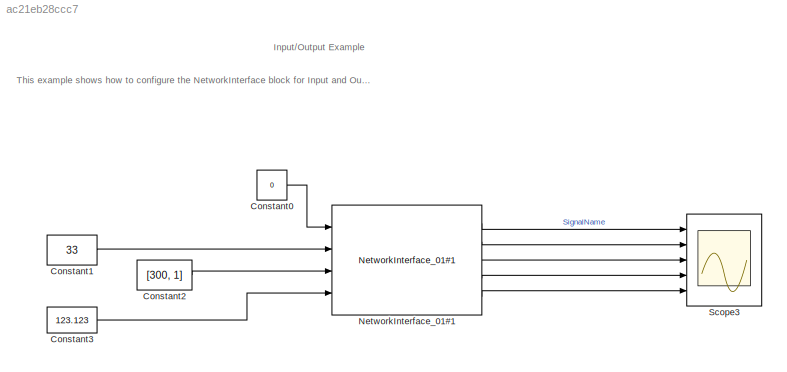
MODEL slx_ac21eb28ccc7
KIND model
CONFIG AbsTol = auto
CONFIG EnableMultiTasking = off
CONFIG FixedStep = 0.05
CONFIG MaxStep = auto
CONFIG MinStep = auto
CONFIG RelTol = 1e-3
CONFIG SampleTimeConstraint = Unconstrained
CONFIG Solver = FixedStepDiscrete
CONFIG SolverName = FixedStepDiscrete
CONFIG StartTime = 0.0
CONFIG StopTime = inf
BLOCK [Constant] Constant0
  OutDataTypeStr = double
  SampleTime = -1
  Value = 0
BLOCK [Constant] Constant1
  OutDataTypeStr = double
  SampleTime = -1
  Value = 33
BLOCK [Constant] Constant2
  OutDataTypeStr = double
  SampleTime = -1
  Value = [300, 1]
BLOCK [Constant] Constant3
  OutDataTypeStr = double
  SampleTime = -1
  Value = 123.123
BLOCK [Reference] NetworkInterface_01#1  REF=LIB_NetwokInterface/NetworkInterface_01#1
  Ports = [4, 5]
  SourceBlock = LIB_NetwokInterface/NetworkInterface_01#1
  SourceType = NetworkInterface Block
BLOCK [Scope] Scope3
  NumInputPorts = 5
  Ports = [5]
  ScopeSpecificationString = Simulink.scopes.TimeScopeBlockCfg('CurrentConfiguration', extmgr.ConfigurationSet(extmgr.Configuration('Core','General UI',true),extmgr.Configuration('Core','Source UI',true),extmgr.Configuration('Sources','WiredSimulink',true,'DataLoggingVariableName','ScopeData1','DataLoggingLimitDataPoints',true,'DataLoggingSaveFormat','Array','DataLoggingDecimation','1','DataLoggingDecimateData',true),extmgr.C...<+4266ch>
ANNOTATION (root): Input/Output Example
ANNOTATION (root): This example shows how to configure the NetworkInterface block for Input and Output operation.
LINE Constant0:1 -> NetworkInterface_01#1:1
LINE Constant1:1 -> NetworkInterface_01#1:2
LINE Constant2:1 -> NetworkInterface_01#1:3
LINE Constant3:1 -> NetworkInterface_01#1:4
LINE NetworkInterface_01#1:1 -> Scope3:1
LINE NetworkInterface_01#1:2 -> Scope3:2
LINE NetworkInterface_01#1:3 -> Scope3:3
LINE NetworkInterface_01#1:4 -> Scope3:4
LINE NetworkInterface_01#1:5 -> Scope3:5
